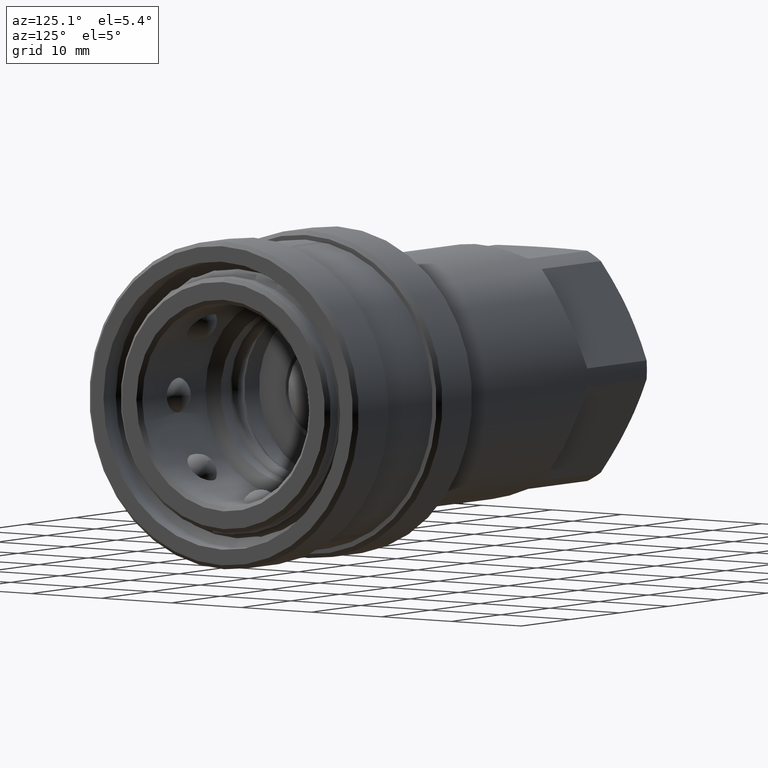
[diagram: clean part render]
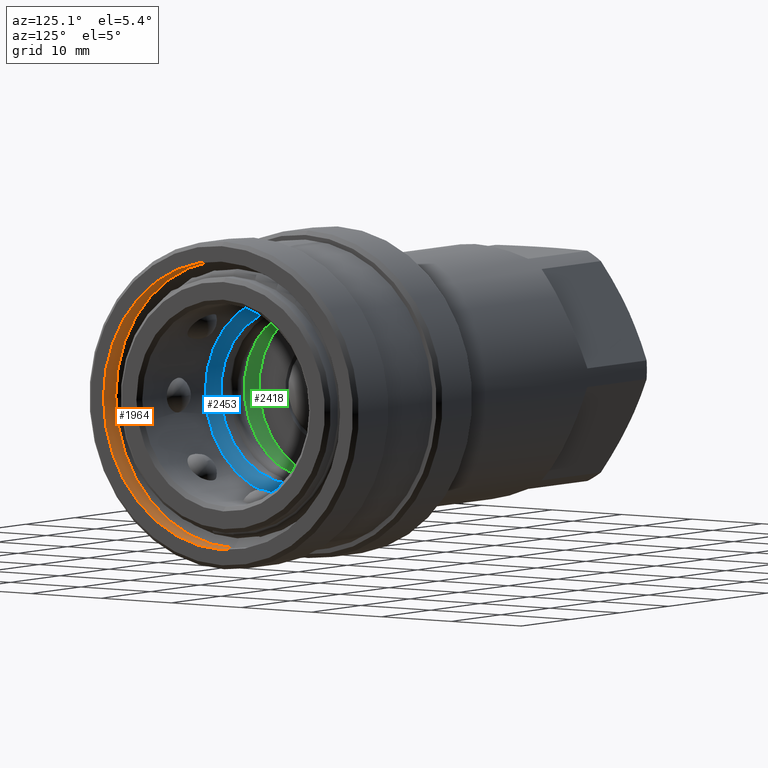
[diagram: same view with three faces highlighted in distinct colors, each labeled with its STEP entity id]
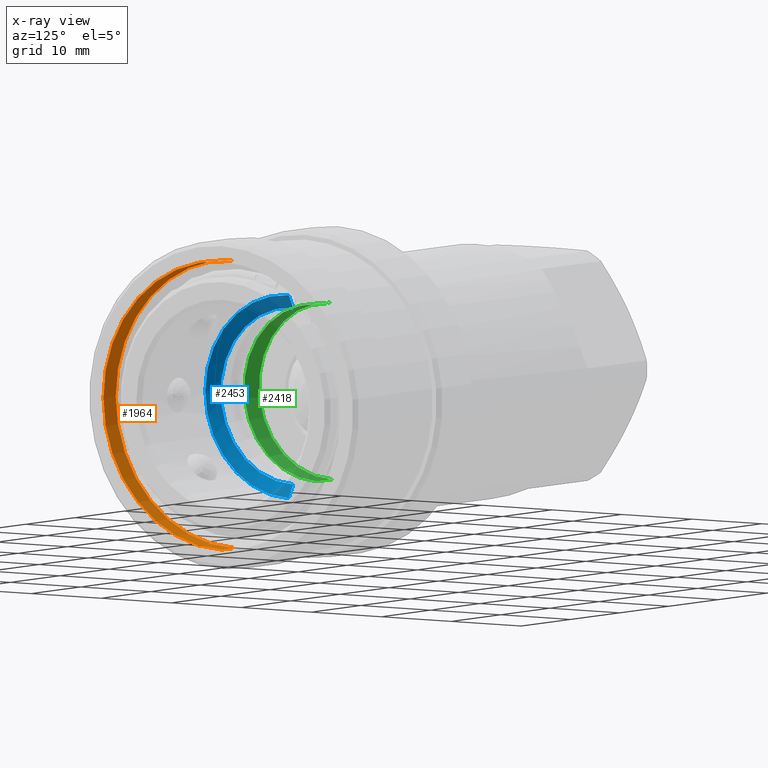
[diagram: x-ray of the same camera — body ghosted, the three highlighted faces saturated]
A machine part, auxiliary view with three faces highlighted in distinct colors.
The next image is the same camera in x-ray (body ghosted, the three faces saturated) — at least one of them is partly hidden behind the body in this view.
Their STEP definitions:

[orange] entity #1964 — the highlighted cylindrical surface (partial cylindrical patch) has radius 16.9 mm, axis along (-1, 0, -0).
#8 = VERTEX_POINT ( 'NONE', #5087 ) ;
#250 = DIRECTION ( 'NONE',  ( -1.000000000000000000, 3.733948038163713664E-16, -1.743219798561495170E-15 ) ) ;
#473 = ORIENTED_EDGE ( 'NONE', *, *, #3121, .F. ) ;
#591 = VECTOR ( 'NONE', #4732, 1000.000000000000000 ) ;
#983 = CARTESIAN_POINT ( 'NONE',  ( 201871.4763805929106, 201918.9340169888164, -16.89995601223655441 ) ) ;
#1092 = CARTESIAN_POINT ( 'NONE',  ( 201807.9763805929106, 201918.9340169888164, 4.997625345963063519E-10 ) ) ;
#1225 = AXIS2_PLACEMENT_3D ( 'NONE', #1575, #2384, #5445 ) ;
#1456 = CARTESIAN_POINT ( 'NONE',  ( 201807.9763805929106, 201918.9340169888164, 16.89995601298005212 ) ) ;
#1526 = DIRECTION ( 'NONE',  ( -1.000000000000000000, 3.733948038163713664E-16, -1.743219798561495170E-15 ) ) ;
#1575 = CARTESIAN_POINT ( 'NONE',  ( 201871.4763805929106, 201918.9340169888164, 4.995437152307481519E-10 ) ) ;
#1652 = ORIENTED_EDGE ( 'NONE', *, *, #2073, .T. ) ;
#1791 = CIRCLE ( 'NONE', #1225, 16.89995601248028834 ) ;
#1944 = EDGE_CURVE ( 'NONE', #2305, #8, #2197, .T. ) ;
#1964 = ADVANCED_FACE ( 'NONE', ( #3713 ), #4616, .F. ) ;
#2022 = DIRECTION ( 'NONE',  ( 0.000000000000000000, 0.000000000000000000, 1.000000000000000000 ) ) ;
#2073 = EDGE_CURVE ( 'NONE', #2372, #2483, #1791, .T. ) ;
#2197 = CIRCLE ( 'NONE', #2452, 16.89995601248028834 ) ;
#2305 = VERTEX_POINT ( 'NONE', #4867 ) ;
#2371 = CARTESIAN_POINT ( 'NONE',  ( 201871.4763805929106, 201918.9340169888164, 16.89995601323559171 ) ) ;
#2372 = VERTEX_POINT ( 'NONE', #983 ) ;
#2384 = DIRECTION ( 'NONE',  ( -1.000000000000000000, 3.733948038163713664E-16, -1.743219798561495170E-15 ) ) ;
#2452 = AXIS2_PLACEMENT_3D ( 'NONE', #3288, #1526, #2022 ) ;
#2483 = VERTEX_POINT ( 'NONE', #2371 ) ;
#2845 = DIRECTION ( 'NONE',  ( 0.000000000000000000, 0.000000000000000000, 1.000000000000000000 ) ) ;
#3121 = EDGE_CURVE ( 'NONE', #8, #2483, #3580, .T. ) ;
#3219 = DIRECTION ( 'NONE',  ( -1.000000000000000000, 3.733948038163713664E-16, -1.743219798561495170E-15 ) ) ;
#3225 = EDGE_LOOP ( 'NONE', ( #5397, #4605, #1652, #473 ) ) ;
#3288 = CARTESIAN_POINT ( 'NONE',  ( 201873.9763805929106, 201918.9340169888164, 4.995351002950961696E-10 ) ) ;
#3368 = CARTESIAN_POINT ( 'NONE',  ( 201807.9763805929106, 201918.9340169888164, -16.89995601198052455 ) ) ;
#3580 = LINE ( 'NONE', #1456, #5176 ) ;
#3713 = FACE_OUTER_BOUND ( 'NONE', #3225, .T. ) ;
#4158 = EDGE_CURVE ( 'NONE', #2305, #2372, #5530, .T. ) ;
#4605 = ORIENTED_EDGE ( 'NONE', *, *, #4158, .T. ) ;
#4616 = CYLINDRICAL_SURFACE ( 'NONE', #4617, 16.89995601248028834 ) ;
#4617 = AXIS2_PLACEMENT_3D ( 'NONE', #1092, #250, #2845 ) ;
#4732 = DIRECTION ( 'NONE',  ( -1.000000000000000000, 3.733948038163713664E-16, -1.743219798561495170E-15 ) ) ;
#4867 = CARTESIAN_POINT ( 'NONE',  ( 201873.9763805929106, 201918.9340169888164, -16.89995601198076614 ) ) ;
#5087 = CARTESIAN_POINT ( 'NONE',  ( 201873.9763805929106, 201918.9340169888164, 16.89995601297982120 ) ) ;
#5176 = VECTOR ( 'NONE', #3219, 1000.000000000000000 ) ;
#5397 = ORIENTED_EDGE ( 'NONE', *, *, #1944, .F. ) ;
#5445 = DIRECTION ( 'NONE',  ( 0.000000000000000000, 0.000000000000000000, 1.000000000000000000 ) ) ;
#5530 = LINE ( 'NONE', #3368, #591 ) ;

[blue] entity #2453 — the highlighted conical surface has half-angle 60 deg.
#306 = ORIENTED_EDGE ( 'NONE', *, *, #5106, .F. ) ;
#394 = CONICAL_SURFACE ( 'NONE', #1135, 10.37495601246973109, 1.047197551187559972 ) ;
#519 = DIRECTION ( 'NONE',  ( 0.000000000000000000, 0.000000000000000000, -1.000000000000000000 ) ) ;
#942 = EDGE_CURVE ( 'NONE', #3567, #4471, #1812, .T. ) ;
#954 = DIRECTION ( 'NONE',  ( 1.000000000000000000, -3.733948038163713664E-16, 1.743219798561495170E-15 ) ) ;
#980 = AXIS2_PLACEMENT_3D ( 'NONE', #1185, #2484, #3780 ) ;
#1117 = ORIENTED_EDGE ( 'NONE', *, *, #3863, .T. ) ;
#1135 = AXIS2_PLACEMENT_3D ( 'NONE', #5308, #954, #519 ) ;
#1185 = CARTESIAN_POINT ( 'NONE',  ( 201860.3491727989167, 201918.9340169888164, 4.995820593024004570E-10 ) ) ;
#1515 = CARTESIAN_POINT ( 'NONE',  ( 201859.4571666328993, 201918.9340169888164, -10.37495601197014672 ) ) ;
#1812 = CIRCLE ( 'NONE', #980, 11.91995601246274816 ) ;
#2256 = VECTOR ( 'NONE', #2820, 999.9999999999998863 ) ;
#2453 = ADVANCED_FACE ( 'NONE', ( #4859 ), #394, .F. ) ;
#2484 = DIRECTION ( 'NONE',  ( -1.000000000000000000, 3.733948038163713664E-16, -1.743219798561495170E-15 ) ) ;
#2761 = EDGE_LOOP ( 'NONE', ( #3758, #1117, #5351, #306 ) ) ;
#2820 = DIRECTION ( 'NONE',  ( 0.5000000000078280715, 7.726748140390822318E-16, 0.8660254037799192117 ) ) ;
#3155 = CIRCLE ( 'NONE', #3327, 10.37495601246973109 ) ;
#3231 = CARTESIAN_POINT ( 'NONE',  ( 201859.4571666328993, 201918.9340169888164, 10.37495601296931547 ) ) ;
#3327 = AXIS2_PLACEMENT_3D ( 'NONE', #3594, #4051, #4426 ) ;
#3338 = VECTOR ( 'NONE', #4101, 1000.000000000000000 ) ;
#3458 = CARTESIAN_POINT ( 'NONE',  ( 201859.4571666328993, 201918.9340169888164, -10.37495601197015560 ) ) ;
#3567 = VERTEX_POINT ( 'NONE', #5562 ) ;
#3593 = VERTEX_POINT ( 'NONE', #3458 ) ;
#3594 = CARTESIAN_POINT ( 'NONE',  ( 201859.4571666328993, 201918.9340169888164, 4.995851331326889520E-10 ) ) ;
#3674 = LINE ( 'NONE', #1515, #3338 ) ;
#3746 = EDGE_CURVE ( 'NONE', #3593, #5319, #3155, .T. ) ;
#3758 = ORIENTED_EDGE ( 'NONE', *, *, #3746, .T. ) ;
#3780 = DIRECTION ( 'NONE',  ( 0.000000000000000000, 0.000000000000000000, 1.000000000000000000 ) ) ;
#3863 = EDGE_CURVE ( 'NONE', #5319, #4471, #5450, .T. ) ;
#4051 = DIRECTION ( 'NONE',  ( -1.000000000000000000, 3.733948038163713664E-16, -1.743219798561495170E-15 ) ) ;
#4101 = DIRECTION ( 'NONE',  ( 0.5000000000078264062, -1.040012093989364587E-15, -0.8660254037799200999 ) ) ;
#4293 = CARTESIAN_POINT ( 'NONE',  ( 201859.4571666328993, 201918.9340169888164, 10.37495601296931547 ) ) ;
#4426 = DIRECTION ( 'NONE',  ( 0.000000000000000000, 0.000000000000000000, 1.000000000000000000 ) ) ;
#4471 = VERTEX_POINT ( 'NONE', #5622 ) ;
#4859 = FACE_OUTER_BOUND ( 'NONE', #2761, .T. ) ;
#5106 = EDGE_CURVE ( 'NONE', #3593, #3567, #3674, .T. ) ;
#5308 = CARTESIAN_POINT ( 'NONE',  ( 201859.4571666328993, 201918.9340169888164, 4.995851331326889520E-10 ) ) ;
#5319 = VERTEX_POINT ( 'NONE', #4293 ) ;
#5351 = ORIENTED_EDGE ( 'NONE', *, *, #942, .F. ) ;
#5450 = LINE ( 'NONE', #3231, #2256 ) ;
#5562 = CARTESIAN_POINT ( 'NONE',  ( 201860.3491727989167, 201918.9340169888164, -11.91995601216012091 ) ) ;
#5622 = CARTESIAN_POINT ( 'NONE',  ( 201860.3491727989167, 201918.9340169888164, 11.91995601315920972 ) ) ;

[green] entity #2418 — the highlighted cylindrical surface (partial cylindrical patch) has radius 10.375 mm, axis along (-1, 0, -0).
#439 = CARTESIAN_POINT ( 'NONE',  ( 201851.6491727989051, 201918.9340169888164, 10.37495601296934389 ) ) ;
#457 = CARTESIAN_POINT ( 'NONE',  ( 201851.6491727989051, 201918.9340169888164, 4.996120392784690494E-10 ) ) ;
#860 = AXIS2_PLACEMENT_3D ( 'NONE', #1851, #3103, #2235 ) ;
#1006 = CARTESIAN_POINT ( 'NONE',  ( 201854.6491727989051, 201918.9340169888164, 4.996017013556868154E-10 ) ) ;
#1071 = AXIS2_PLACEMENT_3D ( 'NONE', #457, #2205, #2654 ) ;
#1590 = EDGE_CURVE ( 'NONE', #3498, #5340, #3982, .T. ) ;
#1617 = EDGE_CURVE ( 'NONE', #1956, #3498, #4373, .T. ) ;
#1629 = AXIS2_PLACEMENT_3D ( 'NONE', #1006, #2254, #2733 ) ;
#1742 = EDGE_CURVE ( 'NONE', #1956, #4764, #3176, .T. ) ;
#1753 = EDGE_CURVE ( 'NONE', #4764, #5340, #3569, .T. ) ;
#1851 = CARTESIAN_POINT ( 'NONE',  ( 201807.9763805929106, 201918.9340169888164, 4.997625345963063519E-10 ) ) ;
#1863 = EDGE_LOOP ( 'NONE', ( #4561, #4358, #4112, #3483 ) ) ;
#1956 = VERTEX_POINT ( 'NONE', #4994 ) ;
#2105 = CARTESIAN_POINT ( 'NONE',  ( 201854.6491727989051, 201918.9340169888164, 10.37495601296933323 ) ) ;
#2205 = DIRECTION ( 'NONE',  ( -1.000000000000000000, 3.733948038163713664E-16, -1.743219798561495170E-15 ) ) ;
#2232 = CARTESIAN_POINT ( 'NONE',  ( 201807.9763805929106, 201918.9340169888164, -10.37495601196996908 ) ) ;
#2235 = DIRECTION ( 'NONE',  ( 0.000000000000000000, 0.000000000000000000, 1.000000000000000000 ) ) ;
#2254 = DIRECTION ( 'NONE',  ( -1.000000000000000000, 3.733948038163713664E-16, -1.743219798561495170E-15 ) ) ;
#2418 = ADVANCED_FACE ( 'NONE', ( #3547 ), #2632, .F. ) ;
#2632 = CYLINDRICAL_SURFACE ( 'NONE', #860, 10.37495601246973109 ) ;
#2654 = DIRECTION ( 'NONE',  ( 0.000000000000000000, 0.000000000000000000, 1.000000000000000000 ) ) ;
#2733 = DIRECTION ( 'NONE',  ( 0.000000000000000000, 0.000000000000000000, 1.000000000000000000 ) ) ;
#2822 = VECTOR ( 'NONE', #4396, 1000.000000000000000 ) ;
#3103 = DIRECTION ( 'NONE',  ( -1.000000000000000000, 3.733948038163713664E-16, -1.743219798561495170E-15 ) ) ;
#3176 = CIRCLE ( 'NONE', #1629, 10.37495601246973109 ) ;
#3483 = ORIENTED_EDGE ( 'NONE', *, *, #1753, .F. ) ;
#3498 = VERTEX_POINT ( 'NONE', #3510 ) ;
#3510 = CARTESIAN_POINT ( 'NONE',  ( 201851.6491727989051, 201918.9340169888164, -10.37495601197012540 ) ) ;
#3547 = FACE_OUTER_BOUND ( 'NONE', #1863, .T. ) ;
#3569 = LINE ( 'NONE', #4427, #4708 ) ;
#3628 = DIRECTION ( 'NONE',  ( -1.000000000000000000, 3.733948038163713664E-16, -1.743219798561495170E-15 ) ) ;
#3982 = CIRCLE ( 'NONE', #1071, 10.37495601246973109 ) ;
#4112 = ORIENTED_EDGE ( 'NONE', *, *, #1590, .T. ) ;
#4358 = ORIENTED_EDGE ( 'NONE', *, *, #1617, .T. ) ;
#4373 = LINE ( 'NONE', #2232, #2822 ) ;
#4396 = DIRECTION ( 'NONE',  ( -1.000000000000000000, 3.733948038163713664E-16, -1.743219798561495170E-15 ) ) ;
#4427 = CARTESIAN_POINT ( 'NONE',  ( 201807.9763805929106, 201918.9340169888164, 10.37495601296949310 ) ) ;
#4561 = ORIENTED_EDGE ( 'NONE', *, *, #1742, .F. ) ;
#4708 = VECTOR ( 'NONE', #3628, 1000.000000000000000 ) ;
#4764 = VERTEX_POINT ( 'NONE', #2105 ) ;
#4994 = CARTESIAN_POINT ( 'NONE',  ( 201854.6491727989051, 201918.9340169888164, -10.37495601197013784 ) ) ;
#5340 = VERTEX_POINT ( 'NONE', #439 ) ;